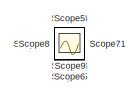
[diagram: root canvas - part 1/4, top left region]
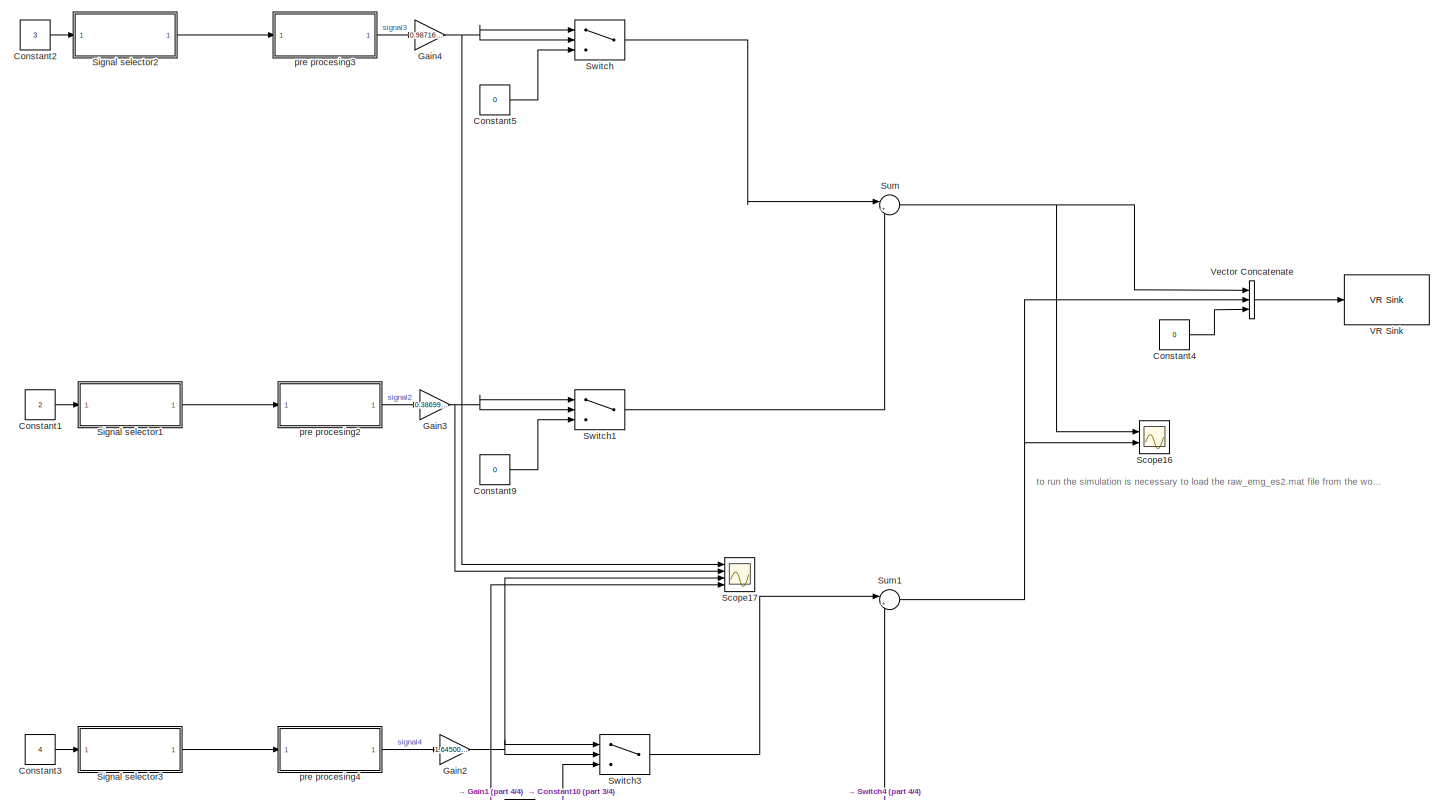
[diagram: root canvas - part 2/4, full width, middle band]
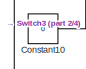
[diagram: root canvas - part 3/4, bottom center region]
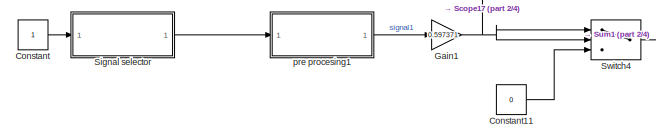
[diagram: root canvas - part 4/4, bottom left region]
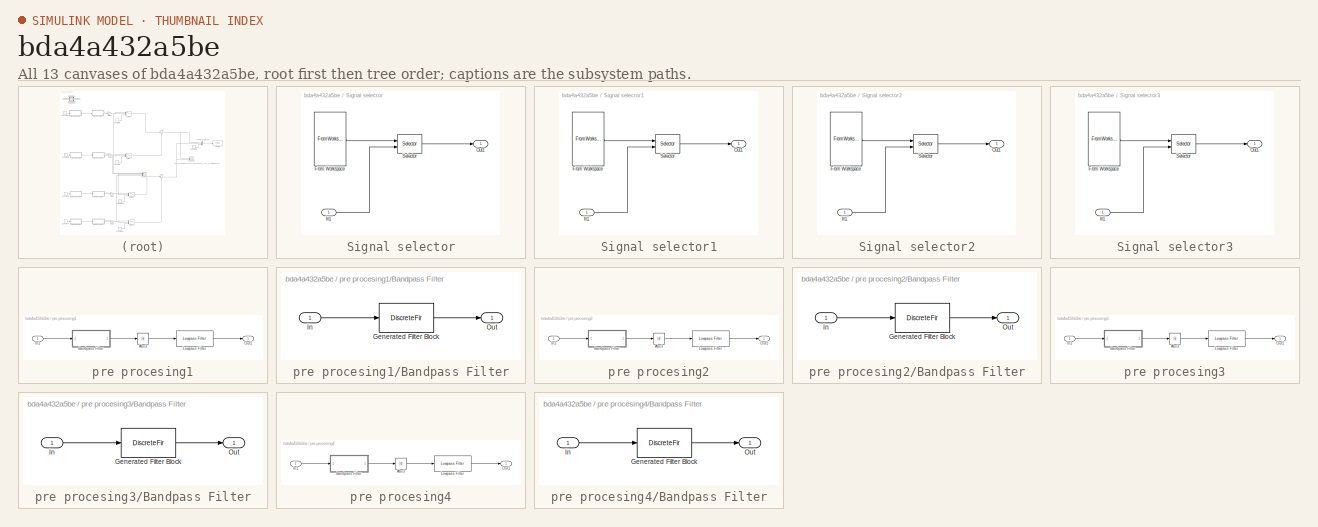
[diagram: thumbnail index - all 13 canvases of the model, root first then tree order]
MODEL slx_bda4a432a5be
KIND model
CONFIG AbsTol = auto
CONFIG EnableMultiTasking = off
CONFIG FixedStep = auto
CONFIG MaxStep = auto
CONFIG MinStep = auto
CONFIG RelTol = 1e-3
CONFIG SampleTimeConstraint = Unconstrained
CONFIG SolverName = VariableStepAuto
CONFIG StartTime = 0.0
CONFIG StopTime = 30
BLOCK [Constant] Constant
  OutDataTypeStr = int8
BLOCK [Constant] Constant1
  OutDataTypeStr = int8
  Value = 2
BLOCK [Constant] Constant10
  Value = 0
BLOCK [Constant] Constant11
  Value = 0
BLOCK [Constant] Constant2
  OutDataTypeStr = int8
  Value = 3
BLOCK [Constant] Constant3
  OutDataTypeStr = int8
  Value = 4
BLOCK [Constant] Constant4
  Value = 0
BLOCK [Constant] Constant5
  Value = 0
BLOCK [Constant] Constant9
  Value = 0
BLOCK [Gain] Gain1
  Gain = 0.597371
BLOCK [Gain] Gain2
  Gain = 1.645007402
BLOCK [Gain] Gain3
  Gain = 0.386996904
BLOCK [Gain] Gain4
  Gain = 0.987166831
BLOCK [Scope] Scope
  Floating = off
  IOType = viewer
  NumInputPorts = 1
  Ports = []
  ScopeSpecificationString = Simulink.scopes.TimeScopeBlockCfg('CurrentConfiguration', extmgr.ConfigurationSet(extmgr.Configuration('Core','General UI',true),extmgr.Configuration('Core','Source UI',true),extmgr.Configuration('Sources','WiredSimulink',true,'DataLoggingVariableName','ScopeData1'),extmgr.Configuration('Visuals','Time Domain',true,'SerializedDisplays',{struct('MinYLimReal','-0.14139','MaxYLimReal','0.29066','YLab...<+1369ch>
BLOCK [Scope] Scope1
  Floating = off
  IOType = viewer
  NumInputPorts = 1
  Ports = []
  ScopeSpecificationString = Simulink.scopes.TimeScopeBlockCfg('CurrentConfiguration', extmgr.ConfigurationSet(extmgr.Configuration('Core','General UI',true),extmgr.Configuration('Core','Source UI',true),extmgr.Configuration('Sources','WiredSimulink',true,'DataLoggingVariableName','ScopeData1'),extmgr.Configuration('Visuals','Time Domain',true,'SerializedDisplays',{struct('MinYLimReal','-0.39079','MaxYLimReal','0.48201','YLab...<+1359ch>
BLOCK [Scope] Scope10
  Floating = off
  IOType = viewer
  NumInputPorts = 1
  Ports = []
  ScopeSpecificationString = Simulink.scopes.TimeScopeBlockCfg('CurrentConfiguration', extmgr.ConfigurationSet(extmgr.Configuration('Core','General UI',true),extmgr.Configuration('Core','Source UI',true),extmgr.Configuration('Sources','WiredSimulink',true,'DataLoggingVariableName','ScopeData4'),extmgr.Configuration('Visuals','Time Domain',true,'SerializedDisplays',{struct('MinYLimReal','-0.18571','MaxYLimReal','0.36361','YLab...<+1375ch>
BLOCK [Scope] Scope11
  Floating = off
  IOType = viewer
  NumInputPorts = 1
  Ports = []
  ScopeSpecificationString = Simulink.scopes.TimeScopeBlockCfg('CurrentConfiguration', extmgr.ConfigurationSet(extmgr.Configuration('Core','General UI',true),extmgr.Configuration('Core','Source UI',true),extmgr.Configuration('Sources','WiredSimulink',true,'DataLoggingVariableName','ScopeData5'),extmgr.Configuration('Visuals','Time Domain',true,'SerializedDisplays',{struct('MinYLimReal','-0.09297','MaxYLimReal','0.10229','YLab...<+1375ch>
BLOCK [Scope] Scope12
  Floating = off
  IOType = viewer
  NumInputPorts = 1
  Ports = []
  ScopeSpecificationString = Simulink.scopes.TimeScopeBlockCfg('CurrentConfiguration', extmgr.ConfigurationSet(extmgr.Configuration('Core','General UI',true),extmgr.Configuration('Core','Source UI',true),extmgr.Configuration('Sources','WiredSimulink',true,'DataLoggingVariableName','ScopeData1'),extmgr.Configuration('Visuals','Time Domain',true,'SerializedDisplays',{struct('MinYLimReal','-0.01915','MaxYLimReal','0.02581','YLab...<+1374ch>
BLOCK [Scope] Scope13
  Floating = off
  IOType = viewer
  NumInputPorts = 1
  Ports = []
  ScopeSpecificationString = Simulink.scopes.TimeScopeBlockCfg('CurrentConfiguration', extmgr.ConfigurationSet(extmgr.Configuration('Core','General UI',true),extmgr.Configuration('Core','Source UI',true),extmgr.Configuration('Sources','WiredSimulink',true,'DataLoggingVariableName','ScopeData2'),extmgr.Configuration('Visuals','Time Domain',true,'SerializedDisplays',{struct('MinYLimReal','-0.00266','MaxYLimReal','0.02398','YLab...<+1363ch>
BLOCK [Scope] Scope14
  Floating = off
  IOType = viewer
  NumInputPorts = 1
  Ports = []
  ScopeSpecificationString = Simulink.scopes.TimeScopeBlockCfg('CurrentConfiguration', extmgr.ConfigurationSet(extmgr.Configuration('Core','General UI',true),extmgr.Configuration('Core','Source UI',true),extmgr.Configuration('Sources','WiredSimulink',true,'DataLoggingVariableName','ScopeData3'),extmgr.Configuration('Visuals','Time Domain',true,'SerializedDisplays',{struct('MinYLimReal','-0.00093','MaxYLimReal','0.00834','YLab...<+1406ch>
BLOCK [Scope] Scope15
  Floating = off
  IOType = viewer
  NumInputPorts = 1
  Ports = []
  ScopeSpecificationString = Simulink.scopes.TimeScopeBlockCfg('CurrentConfiguration', extmgr.ConfigurationSet(extmgr.Configuration('Core','General UI',true),extmgr.Configuration('Core','Source UI',true),extmgr.Configuration('Sources','WiredSimulink',true,'DataLoggingVariableName','ScopeData4'),extmgr.Configuration('Visuals','Time Domain',true,'SerializedDisplays',{struct('MinYLimReal','-0.00093','MaxYLimReal','0.00834','YLab...<+1399ch>
BLOCK [Scope] Scope16
  Floating = off
  NumInputPorts = 2
  Ports = [2]
  ScopeSpecificationString = Simulink.scopes.TimeScopeBlockCfg('CurrentConfiguration', extmgr.ConfigurationSet(extmgr.Configuration('Core','General UI',true),extmgr.Configuration('Core','Source UI',true),extmgr.Configuration('Sources','WiredSimulink',true,'DataLoggingVariableName','ScopeData1'),extmgr.Configuration('Visuals','Time Domain',true,'SerializedDisplays',{struct('MinYLimReal','-0.12499','MaxYLimReal','0.12499','YLab...<+1369ch>
BLOCK [Scope] Scope17
  Floating = off
  NumInputPorts = 4
  Ports = [4]
  ScopeSpecificationString = Simulink.scopes.TimeScopeBlockCfg('CurrentConfiguration', extmgr.ConfigurationSet(extmgr.Configuration('Core','General UI',true),extmgr.Configuration('Core','Source UI',true),extmgr.Configuration('Sources','WiredSimulink',true,'DataLoggingVariableName','ScopeData2'),extmgr.Configuration('Visuals','Time Domain',true,'SerializedDisplays',{struct('MinYLimReal','-0.0125','MaxYLimReal','0.11249','YLabe...<+1605ch>
BLOCK [Scope] Scope2
  Floating = off
  IOType = viewer
  NumInputPorts = 1
  Ports = []
  ScopeSpecificationString = Simulink.scopes.TimeScopeBlockCfg('CurrentConfiguration', extmgr.ConfigurationSet(extmgr.Configuration('Core','General UI',true),extmgr.Configuration('Core','Source UI',true),extmgr.Configuration('Sources','WiredSimulink',true,'DataLoggingVariableName','ScopeData2'),extmgr.Configuration('Visuals','Time Domain',true,'SerializedDisplays',{struct('MinYLimReal','-0.36702','MaxYLimReal','0.26808','YLab...<+1374ch>
BLOCK [Scope] Scope3
  Floating = off
  IOType = viewer
  NumInputPorts = 1
  Ports = []
  ScopeSpecificationString = Simulink.scopes.TimeScopeBlockCfg('CurrentConfiguration', extmgr.ConfigurationSet(extmgr.Configuration('Core','General UI',true),extmgr.Configuration('Core','Source UI',true),extmgr.Configuration('Sources','WiredSimulink',true,'DataLoggingVariableName','ScopeData3'),extmgr.Configuration('Visuals','Time Domain',true,'SerializedDisplays',{struct('MinYLimReal','-1.00000','MaxYLimReal','1.00000','YLab...<+1380ch>
BLOCK [Scope] Scope4
  Floating = off
  IOType = viewer
  NumInputPorts = 1
  Ports = []
  ScopeSpecificationString = Simulink.scopes.TimeScopeBlockCfg('CurrentConfiguration', extmgr.ConfigurationSet(extmgr.Configuration('Core','General UI',true),extmgr.Configuration('Core','Source UI',true),extmgr.Configuration('Sources','WiredSimulink',true,'DataLoggingVariableName','ScopeData4'),extmgr.Configuration('Visuals','Time Domain',true,'SerializedDisplays',{struct('MinYLimReal','-0.01189','MaxYLimReal','0.10883','YLab...<+1359ch>
BLOCK [Scope] Scope5
  Floating = off
  IOType = viewer
  NumInputPorts = 1
  Ports = []
  ScopeSpecificationString = Simulink.scopes.TimeScopeBlockCfg('CurrentConfiguration', extmgr.ConfigurationSet(extmgr.Configuration('Core','General UI',true),extmgr.Configuration('Core','Source UI',true),extmgr.Configuration('Sources','WiredSimulink',true,'DataLoggingVariableName','ScopeData5'),extmgr.Configuration('Visuals','Time Domain',true,'SerializedDisplays',{struct('MinYLimReal','-0.00621','MaxYLimReal','0.03439','YLab...<+1366ch>
BLOCK [Scope] Scope6
  Floating = off
  IOType = viewer
  NumInputPorts = 1
  Ports = []
  ScopeSpecificationString = Simulink.scopes.TimeScopeBlockCfg('CurrentConfiguration', extmgr.ConfigurationSet(extmgr.Configuration('Core','General UI',true),extmgr.Configuration('Core','Source UI',true),extmgr.Configuration('Sources','WiredSimulink',true,'DataLoggingVariableName','ScopeData6'),extmgr.Configuration('Visuals','Time Domain',true,'SerializedDisplays',{struct('MinYLimReal','-0.69253','MaxYLimReal','1.24253','YLab...<+1375ch>
BLOCK [Scope] Scope7
  Floating = off
  IOType = viewer
  NumInputPorts = 1
  Ports = []
  ScopeSpecificationString = Simulink.scopes.TimeScopeBlockCfg('CurrentConfiguration', extmgr.ConfigurationSet(extmgr.Configuration('Core','General UI',true),extmgr.Configuration('Core','Source UI',true),extmgr.Configuration('Sources','WiredSimulink',true,'DataLoggingVariableName','ScopeData7'),extmgr.Configuration('Visuals','Time Domain',true,'SerializedDisplays',{struct('MinYLimReal','-0.03361','MaxYLimReal','0.03489','YLab...<+1380ch>
BLOCK [Scope] Scope8
  Floating = off
  IOType = viewer
  NumInputPorts = 1
  Ports = []
  ScopeSpecificationString = Simulink.scopes.TimeScopeBlockCfg('CurrentConfiguration', extmgr.ConfigurationSet(extmgr.Configuration('Core','General UI',true),extmgr.Configuration('Core','Source UI',true),extmgr.Configuration('Sources','WiredSimulink',true,'DataLoggingVariableName','ScopeData1'),extmgr.Configuration('Visuals','Time Domain',true,'SerializedDisplays',{struct('MinYLimReal','-0.11794','MaxYLimReal','0.09392','YLab...<+1359ch>
BLOCK [Scope] Scope9
  Floating = off
  IOType = viewer
  NumInputPorts = 1
  Ports = []
  ScopeSpecificationString = Simulink.scopes.TimeScopeBlockCfg('CurrentConfiguration', extmgr.ConfigurationSet(extmgr.Configuration('Core','General UI',true),extmgr.Configuration('Core','Source UI',true),extmgr.Configuration('Sources','WiredSimulink',true,'DataLoggingVariableName','ScopeData3'),extmgr.Configuration('Visuals','Time Domain',true,'SerializedDisplays',{struct('MinYLimReal','-0.6714','MaxYLimReal','0.61034','YLabe...<+1371ch>
BLOCK [SubSystem] Signal selector
  Ports = [1, 1]
  RequestExecContextInheritance = off
  TreatAsAtomicUnit = on
BLOCK [FromWorkspace] Signal selector/From Workspace
  VariableName = raw_emg_es2
BLOCK [Inport] Signal selector/In1
BLOCK [Outport] Signal selector/Out1
BLOCK [Selector] Signal selector/Selector
  IndexOptions = Starting index (port)
  Indices = [1 3]
  InputPortWidth = 4
  OutputSizes = 1
  Ports = [2, 1]
  RuntimeRangeChecks = on
BLOCK [SubSystem] Signal selector1
  Ports = [1, 1]
  RequestExecContextInheritance = off
  TreatAsAtomicUnit = on
BLOCK [FromWorkspace] Signal selector1/From Workspace
  VariableName = raw_emg_es2
BLOCK [Inport] Signal selector1/In1
BLOCK [Outport] Signal selector1/Out1
BLOCK [Selector] Signal selector1/Selector
  IndexOptions = Starting index (port)
  Indices = [1 3]
  InputPortWidth = 4
  OutputSizes = 1
  Ports = [2, 1]
  RuntimeRangeChecks = on
BLOCK [SubSystem] Signal selector2
  Ports = [1, 1]
  RequestExecContextInheritance = off
  TreatAsAtomicUnit = on
BLOCK [FromWorkspace] Signal selector2/From Workspace
  VariableName = raw_emg_es2
BLOCK [Inport] Signal selector2/In1
BLOCK [Outport] Signal selector2/Out1
BLOCK [Selector] Signal selector2/Selector
  IndexOptions = Starting index (port)
  Indices = [1 3]
  InputPortWidth = 4
  OutputSizes = 1
  Ports = [2, 1]
  RuntimeRangeChecks = on
BLOCK [SubSystem] Signal selector3
  Ports = [1, 1]
  RequestExecContextInheritance = off
  TreatAsAtomicUnit = on
BLOCK [FromWorkspace] Signal selector3/From Workspace
  VariableName = raw_emg_es2
BLOCK [Inport] Signal selector3/In1
BLOCK [Outport] Signal selector3/Out1
BLOCK [Selector] Signal selector3/Selector
  IndexOptions = Starting index (port)
  Indices = [1 3]
  InputPortWidth = 4
  OutputSizes = 1
  Ports = [2, 1]
  RuntimeRangeChecks = on
BLOCK [Sum] Sum
  Inputs = |+-
  Ports = [2, 1]
BLOCK [Sum] Sum1
  Inputs = |+-
  Ports = [2, 1]
BLOCK [Switch] Switch
  InputSameDT = off
  SaturateOnIntegerOverflow = off
  Threshold = 0.054
  ZeroCross = off
BLOCK [Switch] Switch1
  InputSameDT = off
  SaturateOnIntegerOverflow = off
  Threshold = 0.01229
  ZeroCross = off
BLOCK [Switch] Switch3
  InputSameDT = off
  SaturateOnIntegerOverflow = off
  Threshold = 0.054
  ZeroCross = off
BLOCK [Switch] Switch4
  InputSameDT = off
  SaturateOnIntegerOverflow = off
  Threshold = 0.0168
  ZeroCross = off
BLOCK [Reference] VR Sink  REF=vrlib/VR Sink
  InstantiateOnLoad = on
  Ports = [1]
  SourceBlock = vrlib/VR Sink
  SourceProductBaseCode = SL
  SourceType = Virtual Reality Sink
BLOCK [Concatenate] Vector Concatenate
  NumInputs = 3
  Ports = [3, 1]
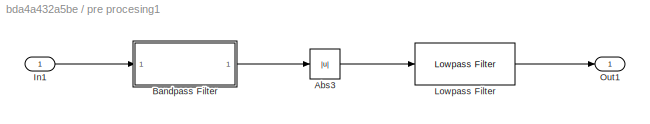
BLOCK [SubSystem] pre procesing1
  Ports = [1, 1]
  RequestExecContextInheritance = off
  TreatAsAtomicUnit = on
BLOCK [Abs] pre procesing1/Abs3
  SaturateOnIntegerOverflow = off
BLOCK [SubSystem] pre procesing1/Bandpass Filter
  CopyFcn = fdesignblkfcn(gcbh, {'CopyFcn'});
  DialogController = fdesignblkfcn
  InitFcn = fdesignblkfcn(gcbh, {'InitFcn'});
  Ports = [1, 1]
  RequestExecContextInheritance = off
  UserDataPersistent = on
BLOCK [DiscreteFir] pre procesing1/Bandpass Filter/Generated Filter Block
  Coefficients = [0.0118271107278146211 0.00749421447574264571 -0.0610262833618276795 -0.00697141743860507472 -0.0116983880847790316 -0.00563959661055920408 -0.00154341643986332169 -0.00513754171063308344 0.00172228706187026984 -0.00526958376803667288 0.00359194610790952631 -0.00514151489691697453 0.00474817145150627142 -0.00433598087152893726 0.00511197423488456149 -0.00281615651890120607 0.00471362178833440847 -...<+6612ch>  <repeated x4 — deduplicated; at blocks: Generated Filter Block>
  InputPortMap = u0
  InputProcessing = Columns as channels (frame based)
  OutputPortMap = o0
  Ports = [1, 1]
  Tag = BlockMethodSubSystem
BLOCK [Inport] pre procesing1/Bandpass Filter/In
BLOCK [Outport] pre procesing1/Bandpass Filter/Out
  VectorParamsAs1DForOutWhenUnconnected = off
BLOCK [Inport] pre procesing1/In1
BLOCK [Reference] pre procesing1/Lowpass Filter  REF=dspfdesign/Lowpass Filter
  Ports = [1, 1]
  SourceBlock = dspfdesign/Lowpass Filter
  SourceProductBaseCode = DS
  SourceType = dsp.simulink.LowpassFilter
BLOCK [Outport] pre procesing1/Out1
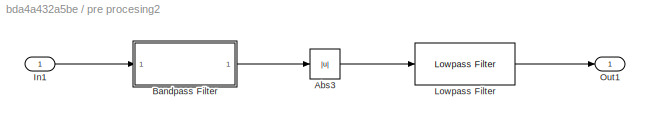
BLOCK [SubSystem] pre procesing2
  Ports = [1, 1]
  RequestExecContextInheritance = off
  TreatAsAtomicUnit = on
BLOCK [Abs] pre procesing2/Abs3
  SaturateOnIntegerOverflow = off
BLOCK [SubSystem] pre procesing2/Bandpass Filter
  CopyFcn = fdesignblkfcn(gcbh, {'CopyFcn'});
  DialogController = fdesignblkfcn
  InitFcn = fdesignblkfcn(gcbh, {'InitFcn'});
  Ports = [1, 1]
  RequestExecContextInheritance = off
  UserDataPersistent = on
BLOCK [DiscreteFir] pre procesing2/Bandpass Filter/Generated Filter Block
  InputPortMap = u0
  InputProcessing = Columns as channels (frame based)
  OutputPortMap = o0
  Ports = [1, 1]
  Tag = BlockMethodSubSystem
BLOCK [Inport] pre procesing2/Bandpass Filter/In
BLOCK [Outport] pre procesing2/Bandpass Filter/Out
  VectorParamsAs1DForOutWhenUnconnected = off
BLOCK [Inport] pre procesing2/In1
BLOCK [Reference] pre procesing2/Lowpass Filter  REF=dspfdesign/Lowpass Filter
  Ports = [1, 1]
  SourceBlock = dspfdesign/Lowpass Filter
  SourceProductBaseCode = DS
  SourceType = dsp.simulink.LowpassFilter
BLOCK [Outport] pre procesing2/Out1
BLOCK [SubSystem] pre procesing3
  Ports = [1, 1]
  RequestExecContextInheritance = off
  TreatAsAtomicUnit = on
BLOCK [Abs] pre procesing3/Abs3
  SaturateOnIntegerOverflow = off
BLOCK [SubSystem] pre procesing3/Bandpass Filter
  CopyFcn = fdesignblkfcn(gcbh, {'CopyFcn'});
  DialogController = fdesignblkfcn
  InitFcn = fdesignblkfcn(gcbh, {'InitFcn'});
  Ports = [1, 1]
  RequestExecContextInheritance = off
  UserDataPersistent = on
BLOCK [DiscreteFir] pre procesing3/Bandpass Filter/Generated Filter Block
  InputPortMap = u0
  InputProcessing = Columns as channels (frame based)
  OutputPortMap = o0
  Ports = [1, 1]
  Tag = BlockMethodSubSystem
BLOCK [Inport] pre procesing3/Bandpass Filter/In
BLOCK [Outport] pre procesing3/Bandpass Filter/Out
  VectorParamsAs1DForOutWhenUnconnected = off
BLOCK [Inport] pre procesing3/In1
BLOCK [Reference] pre procesing3/Lowpass Filter  REF=dspfdesign/Lowpass Filter
  Ports = [1, 1]
  SourceBlock = dspfdesign/Lowpass Filter
  SourceProductBaseCode = DS
  SourceType = dsp.simulink.LowpassFilter
BLOCK [Outport] pre procesing3/Out1
BLOCK [SubSystem] pre procesing4
  Ports = [1, 1]
  RequestExecContextInheritance = off
  TreatAsAtomicUnit = on
BLOCK [Abs] pre procesing4/Abs3
  SaturateOnIntegerOverflow = off
BLOCK [SubSystem] pre procesing4/Bandpass Filter
  CopyFcn = fdesignblkfcn(gcbh, {'CopyFcn'});
  DialogController = fdesignblkfcn
  InitFcn = fdesignblkfcn(gcbh, {'InitFcn'});
  Ports = [1, 1]
  RequestExecContextInheritance = off
  UserDataPersistent = on
BLOCK [DiscreteFir] pre procesing4/Bandpass Filter/Generated Filter Block
  InputPortMap = u0
  InputProcessing = Columns as channels (frame based)
  OutputPortMap = o0
  Ports = [1, 1]
  Tag = BlockMethodSubSystem
BLOCK [Inport] pre procesing4/Bandpass Filter/In
BLOCK [Outport] pre procesing4/Bandpass Filter/Out
  VectorParamsAs1DForOutWhenUnconnected = off
BLOCK [Inport] pre procesing4/In1
BLOCK [Reference] pre procesing4/Lowpass Filter  REF=dspfdesign/Lowpass Filter
  Ports = [1, 1]
  SourceBlock = dspfdesign/Lowpass Filter
  SourceProductBaseCode = DS
  SourceType = dsp.simulink.LowpassFilter
BLOCK [Outport] pre procesing4/Out1
ANNOTATION (root): to run the simulation is necessary to load the raw_emg_es2.mat file from the workspace, just by clicking on it or by the command load("raw_emg_es2.mat").
LINE Constant10:1 -> Switch3:3
LINE Constant11:1 -> Switch4:3
LINE Constant1:1 -> Signal selector1:1
LINE Constant2:1 -> Signal selector2:1
LINE Constant3:1 -> Signal selector3:1
LINE Constant4:1 -> Vector Concatenate:3
LINE Constant5:1 -> Switch:3
LINE Constant9:1 -> Switch1:3
LINE Constant:1 -> Signal selector:1
NET Gain1:1 -> Scope17:4, Switch4:1, Switch4:2
NET Gain2:1 -> Scope17:3, Switch3:1, Switch3:2
NET Gain3:1 -> Scope17:2, Switch1:1, Switch1:2
NET Gain4:1 -> Scope17:1, Switch:1, Switch:2
LINE Signal selector/From Workspace:1 -> Signal selector/Selector:1
LINE Signal selector/In1:1 -> Signal selector/Selector:2
LINE Signal selector/Selector:1 -> Signal selector/Out1:1
LINE Signal selector1/From Workspace:1 -> Signal selector1/Selector:1
LINE Signal selector1/In1:1 -> Signal selector1/Selector:2
LINE Signal selector1/Selector:1 -> Signal selector1/Out1:1
LINE Signal selector1:1 -> pre procesing2:1
LINE Signal selector2/From Workspace:1 -> Signal selector2/Selector:1
LINE Signal selector2/In1:1 -> Signal selector2/Selector:2
LINE Signal selector2/Selector:1 -> Signal selector2/Out1:1
LINE Signal selector2:1 -> pre procesing3:1
LINE Signal selector3/From Workspace:1 -> Signal selector3/Selector:1
LINE Signal selector3/In1:1 -> Signal selector3/Selector:2
LINE Signal selector3/Selector:1 -> Signal selector3/Out1:1
LINE Signal selector3:1 -> pre procesing4:1
LINE Signal selector:1 -> pre procesing1:1
NET Sum1:1 -> Scope16:2, Vector Concatenate:2
NET Sum:1 -> Scope16:1, Vector Concatenate:1
LINE Switch1:1 -> Sum:2
LINE Switch3:1 -> Sum1:1
LINE Switch4:1 -> Sum1:2
LINE Switch:1 -> Sum:1
LINE Vector Concatenate:1 -> VR Sink:1
LINE pre procesing1/Abs3:1 -> pre procesing1/Lowpass Filter:1
LINE pre procesing1/Bandpass Filter:1 -> pre procesing1/Abs3:1
LINE pre procesing1/In1:1 -> pre procesing1/Bandpass Filter:1
LINE pre procesing1/Lowpass Filter:1 -> pre procesing1/Out1:1
LINE pre procesing1:1 -> Gain1:1
LINE pre procesing2/Abs3:1 -> pre procesing2/Lowpass Filter:1
LINE pre procesing2/Bandpass Filter:1 -> pre procesing2/Abs3:1
LINE pre procesing2/In1:1 -> pre procesing2/Bandpass Filter:1
LINE pre procesing2/Lowpass Filter:1 -> pre procesing2/Out1:1
LINE pre procesing2:1 -> Gain3:1
LINE pre procesing3/Abs3:1 -> pre procesing3/Lowpass Filter:1
LINE pre procesing3/Bandpass Filter:1 -> pre procesing3/Abs3:1
LINE pre procesing3/In1:1 -> pre procesing3/Bandpass Filter:1
LINE pre procesing3/Lowpass Filter:1 -> pre procesing3/Out1:1
LINE pre procesing3:1 -> Gain4:1
LINE pre procesing4/Abs3:1 -> pre procesing4/Lowpass Filter:1
LINE pre procesing4/Bandpass Filter:1 -> pre procesing4/Abs3:1
LINE pre procesing4/In1:1 -> pre procesing4/Bandpass Filter:1
LINE pre procesing4/Lowpass Filter:1 -> pre procesing4/Out1:1
LINE pre procesing4:1 -> Gain2:1
note: NET lines group one-source signal fan-out (src -> all destinations, sorted); 1:1 wires keep LINE
